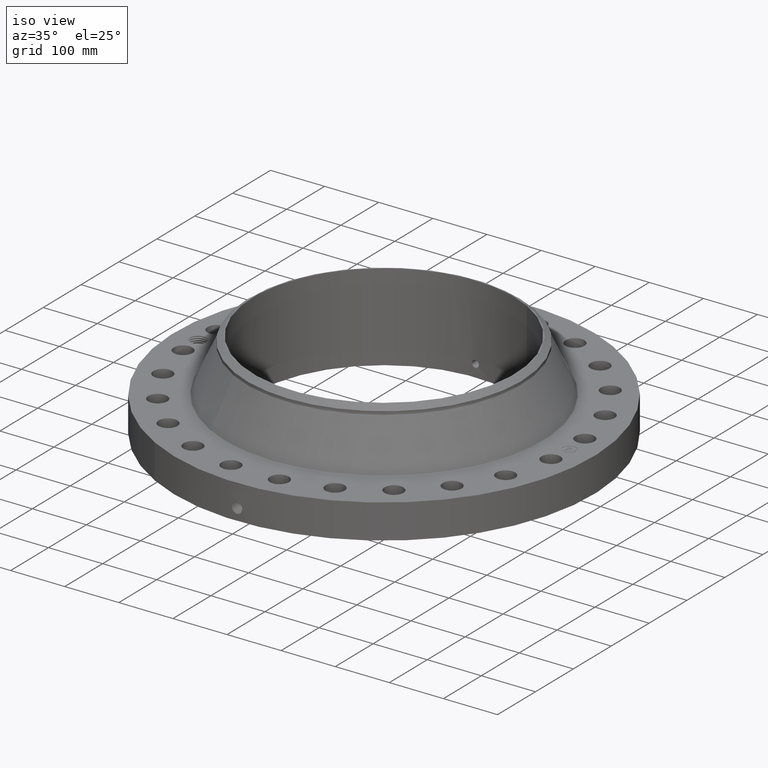
[diagram: clean part render]
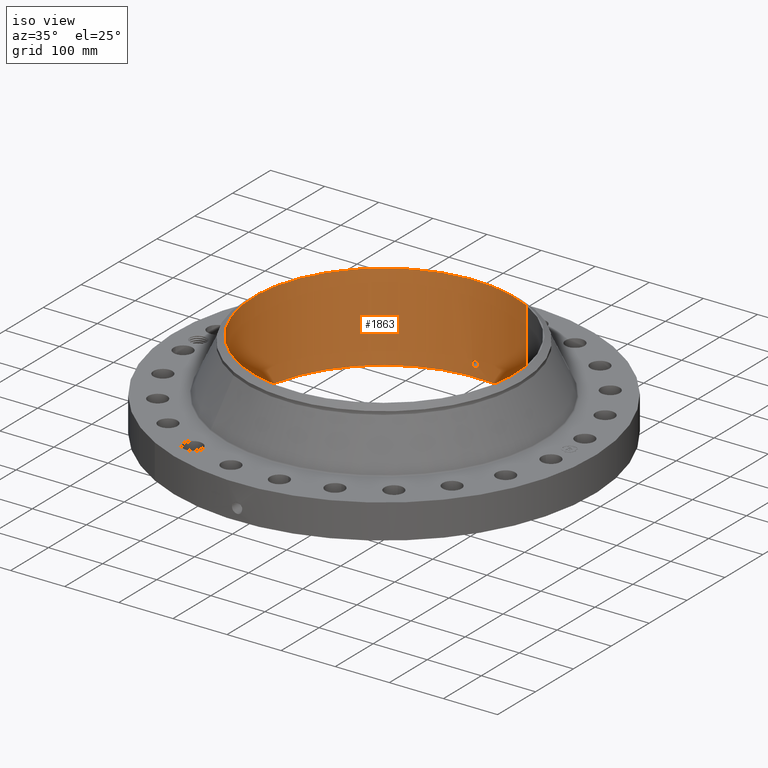
[diagram: tour spotlight — one face highlighted and labeled with its STEP entity id]
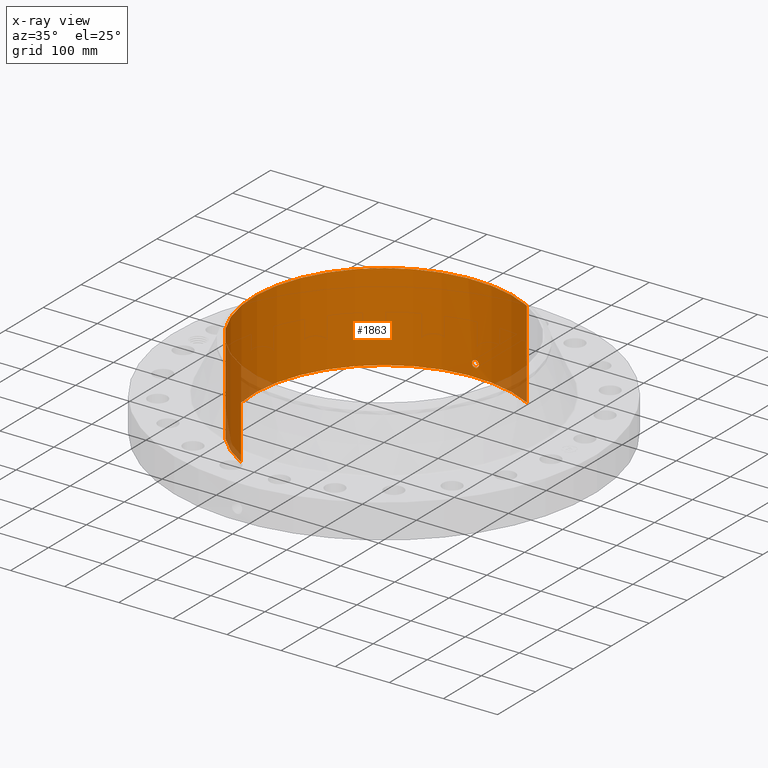
[diagram: x-ray of the same camera — body ghosted, this tour face saturated]
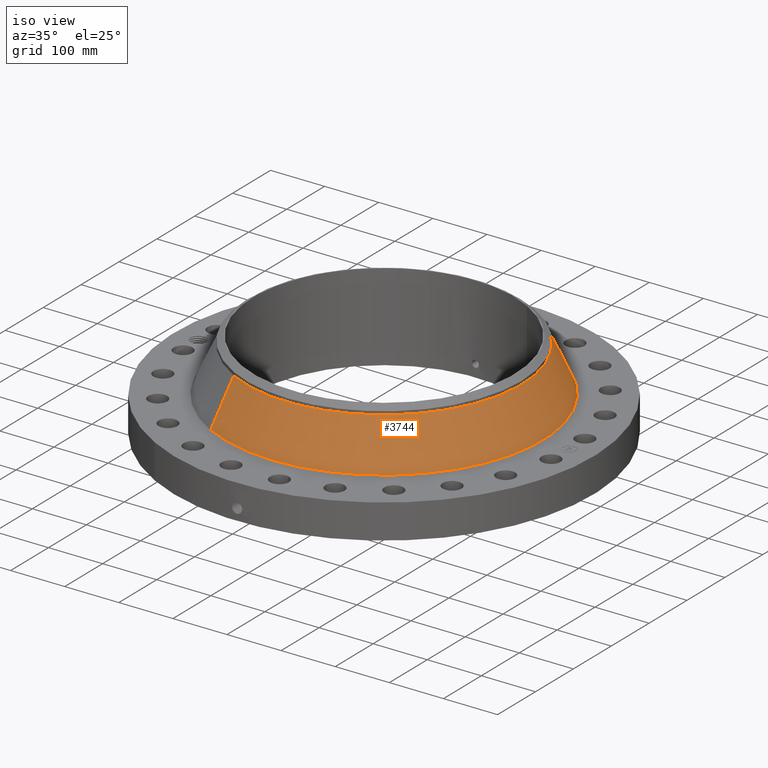
[diagram: tour spotlight — one face highlighted and labeled with its STEP entity id]
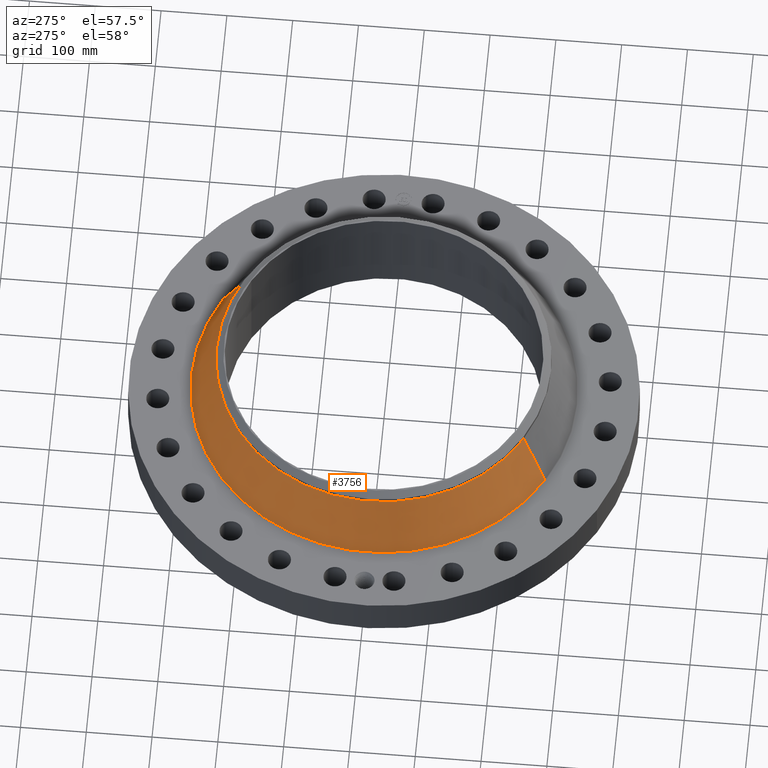
[diagram: tour spotlight — one face highlighted and labeled with its STEP entity id]
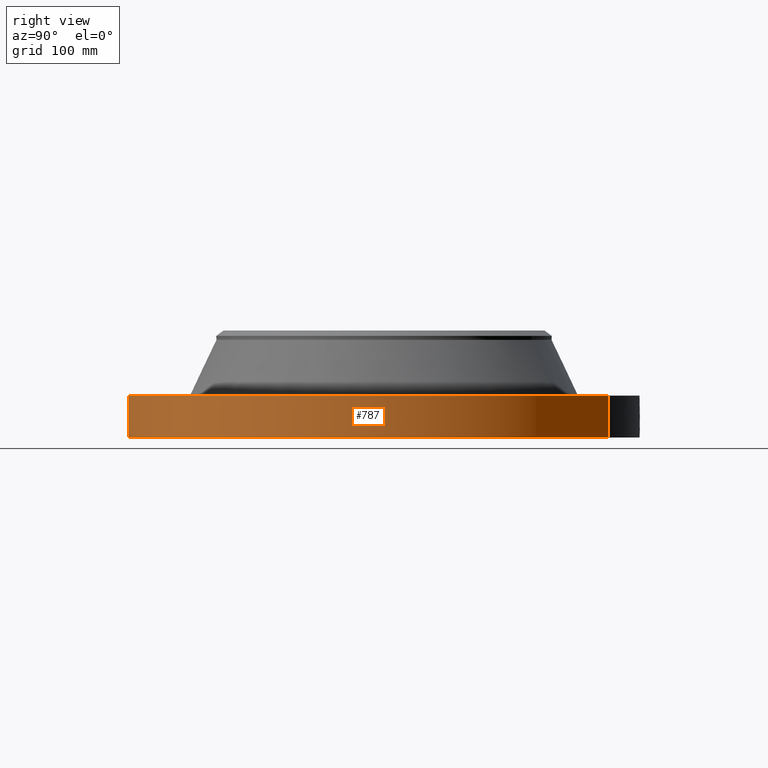
[diagram: tour spotlight — one face highlighted and labeled with its STEP entity id]
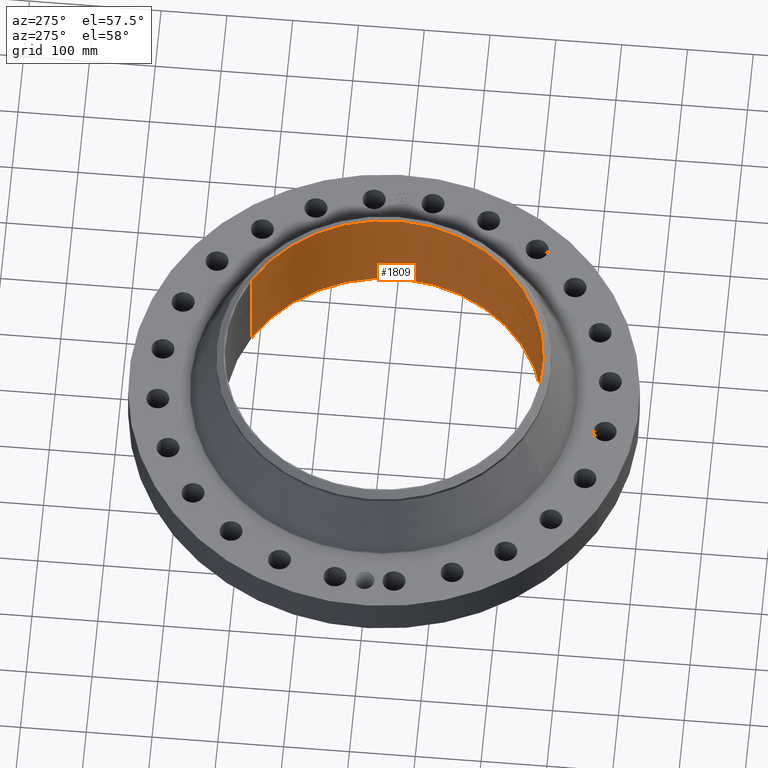
[diagram: tour spotlight — one face highlighted and labeled with its STEP entity id]
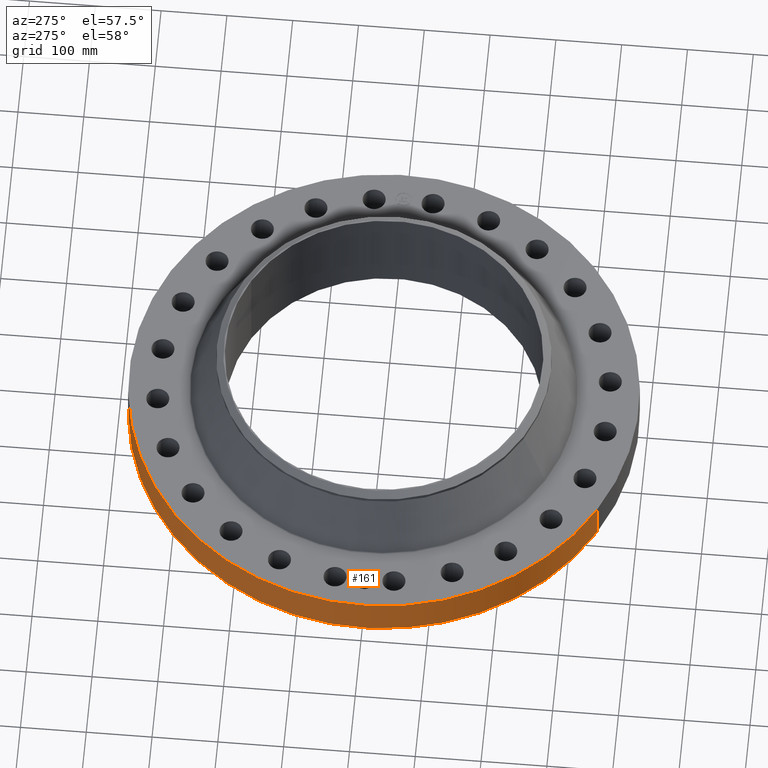
[diagram: tour spotlight — one face highlighted and labeled with its STEP entity id]
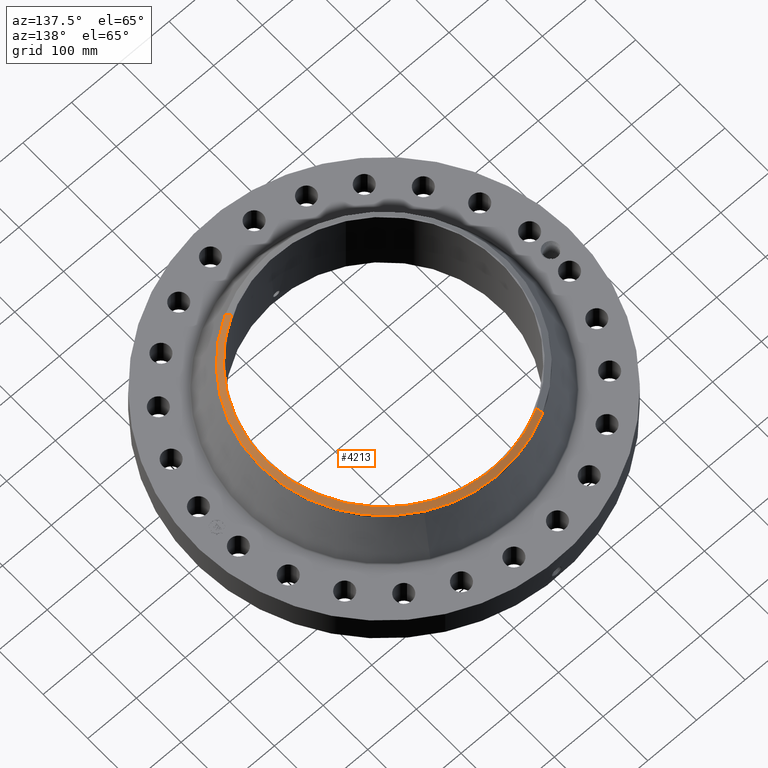
[diagram: tour spotlight — one face highlighted and labeled with its STEP entity id]
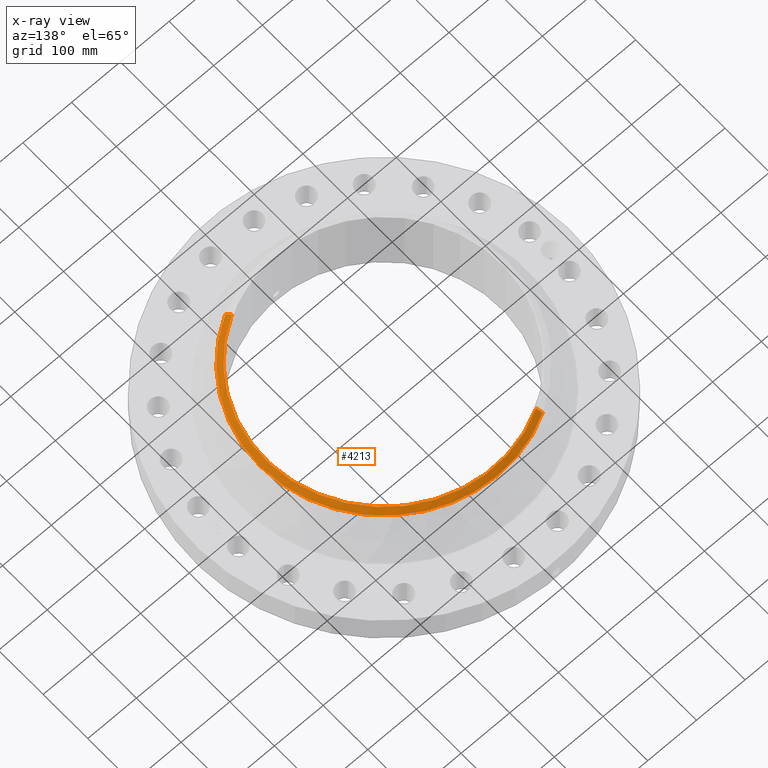
[diagram: x-ray of the same camera — body ghosted, this tour face saturated]
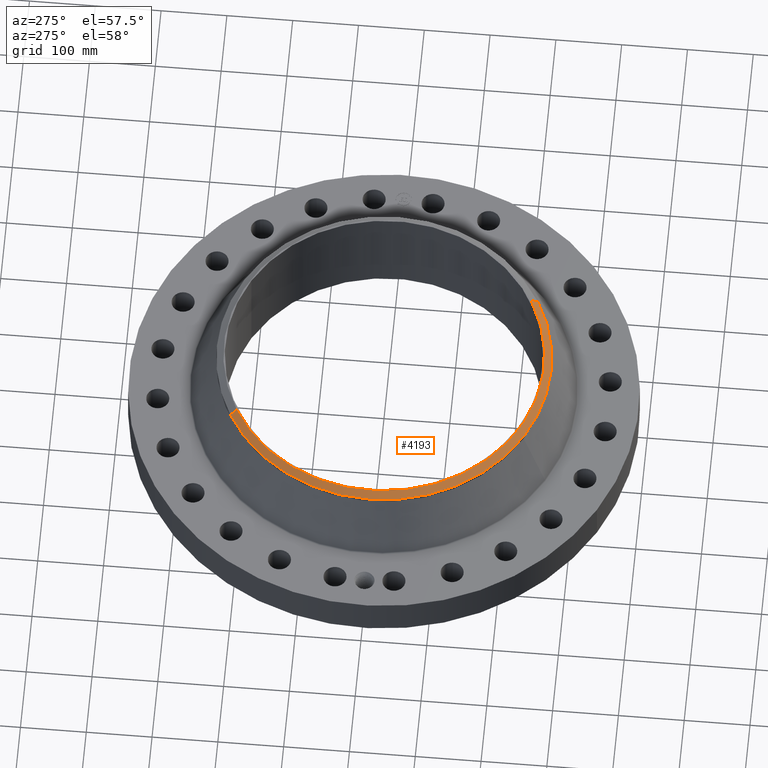
[diagram: tour spotlight — one face highlighted and labeled with its STEP entity id]
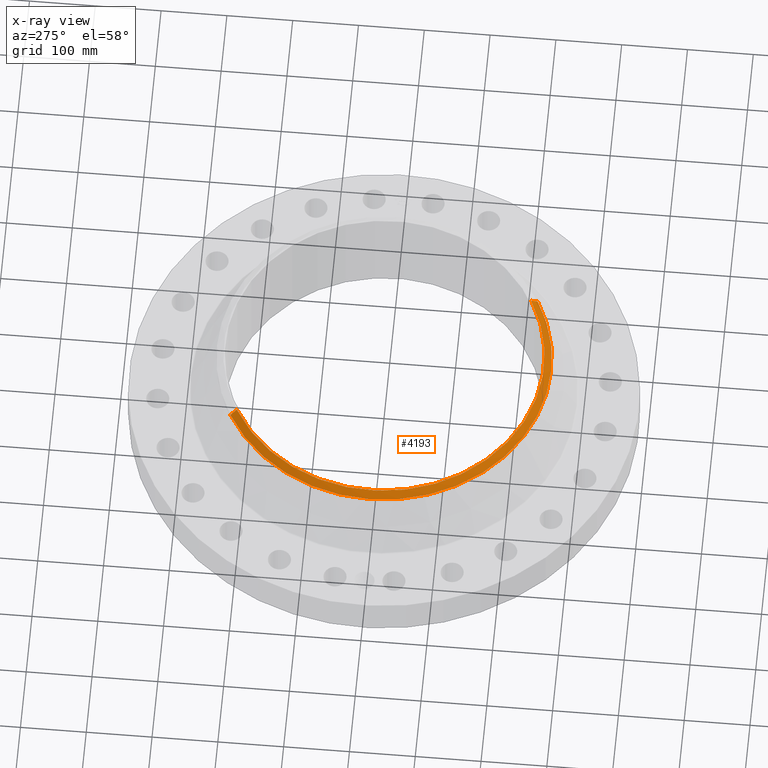
[diagram: x-ray of the same camera — body ghosted, this tour face saturated]
A machine part: a face-by-face anatomy tour. The part has 815 B-rep faces; the first image is the clean iso view, then the 8 largest visible faces are spotlighted one at a time (largest first), each with its STEP entity span.

Face 1 — iso view, entity #1863. An x-ray twin of the same camera follows (body ghosted, this face saturated) — the face is partly hidden behind the body. In plain terms, the highlighted cylindrical surface (partial cylindrical patch) has radius 241.3 mm, axis along (0, 0, -1).
Definition (entity closure, byte-faithful):
#267=AXIS2_PLACEMENT_3D('Circle Axis2P3D',#265,#266,$) ;
#1740=AXIS2_PLACEMENT_3D('Cylinder Axis2P3D',#1737,#1738,#1739) ;
#1812=AXIS2_PLACEMENT_3D('Circle Axis2P3D',#1810,#1811,$) ;
#260=CARTESIAN_POINT('Vertex',(4.55454261676,8.33703433799,0.0600000000002)) ;
#262=CARTESIAN_POINT('Vertex',(-4.55454261676,-8.33703433799,0.0600000000002)) ;
#265=CARTESIAN_POINT('Axis2P3D Location',(0.,0.,0.0600000000002)) ;
#1737=CARTESIAN_POINT('Axis2P3D Location',(0.,0.,3.25000000001)) ;
#1746=CARTESIAN_POINT('Vertex',(4.55454261676,8.33703433799,6.44000000003)) ;
#1748=CARTESIAN_POINT('Vertex',(-4.55454261676,-8.33703433799,6.44000000003)) ;
#1751=CARTESIAN_POINT('Line Origine',(4.55454261676,8.33703433799,3.25000000001)) ;
#1756=CARTESIAN_POINT('Line Origine',(-4.55454261676,-8.33703433799,3.25000000001)) ;
#1810=CARTESIAN_POINT('Axis2P3D Location',(0.,0.,6.44000000003)) ;
#1822=CARTESIAN_POINT('Control Point',(0.219395640473,9.4974662702,1.05985638466)) ;
#1823=CARTESIAN_POINT('Control Point',(0.194442935998,9.49804268863,1.10553200382)) ;
#1824=CARTESIAN_POINT('Control Point',(0.157604874715,9.49881167245,1.14471210689)) ;
#1825=CARTESIAN_POINT('Control Point',(0.111106986348,9.49955955235,1.17324351808)) ;
#1826=CARTESIAN_POINT('Control Point',(0.0336717783196,9.50015458293,1.19588281264)) ;
#1827=CARTESIAN_POINT('Control Point',(-0.044673037031,9.49994894621,1.18805610377)) ;
#1828=CARTESIAN_POINT('Control Point',(-0.0703033492364,9.49978931029,1.18204313534)) ;
#1829=CARTESIAN_POINT('Control Point',(-0.143960170541,9.49908388344,1.15420983013)) ;
#1830=CARTESIAN_POINT('Control Point',(-0.203248205384,9.49793246426,1.09949287893)) ;
#1831=CARTESIAN_POINT('Control Point',(-0.232212656354,9.49717731079,1.05325204753)) ;
#1832=CARTESIAN_POINT('Control Point',(-0.255841020188,9.49655659169,0.975105963638)) ;
#1833=CARTESIAN_POINT('Control Point',(-0.24828187603,9.49675500838,0.895743006064)) ;
#1834=CARTESIAN_POINT('Control Point',(-0.242048121009,9.49692100883,0.869181965435)) ;
#1835=CARTESIAN_POINT('Control Point',(-0.232314918729,9.4971678292,0.843792195572)) ;
#1836=CARTESIAN_POINT('Control Point',(-0.219395640473,9.4974662702,0.820143615352)) ;
#1837=CARTESIAN_POINT('Vertex',(0.219395640473,9.4974662702,1.05985638466)) ;
#1839=CARTESIAN_POINT('Vertex',(-0.219395640473,9.4974662702,0.820143615352)) ;
#1843=CARTESIAN_POINT('Control Point',(-0.219395640473,9.4974662702,0.820143615352)) ;
#1844=CARTESIAN_POINT('Control Point',(-0.194442935986,9.49804268863,0.774467996164)) ;
#1845=CARTESIAN_POINT('Control Point',(-0.157604874679,9.49881167245,0.735287893083)) ;
#1846=CARTESIAN_POINT('Control Point',(-0.1111069864,9.49955955235,0.706756481942)) ;
#1847=CARTESIAN_POINT('Control Point',(-0.0336717783567,9.50015458293,0.684117187373)) ;
#1848=CARTESIAN_POINT('Control Point',(0.0446730370104,9.49994894621,0.691943896232)) ;
#1849=CARTESIAN_POINT('Control Point',(0.0703033492518,9.49978931029,0.697956864676)) ;
#1850=CARTESIAN_POINT('Control Point',(0.143960170647,9.49908388344,0.72579016992)) ;
#1851=CARTESIAN_POINT('Control Point',(0.203248205545,9.49793246426,0.780507121222)) ;
#1852=CARTESIAN_POINT('Control Point',(0.23221265629,9.4971773108,0.826747952265)) ;
#1853=CARTESIAN_POINT('Control Point',(0.255841020174,9.49655659169,0.904894036181)) ;
#1854=CARTESIAN_POINT('Control Point',(0.248281876046,9.49675500837,0.984256993781)) ;
#1855=CARTESIAN_POINT('Control Point',(0.242048120951,9.49692100883,1.01081803472)) ;
#1856=CARTESIAN_POINT('Control Point',(0.23231491869,9.49716782921,1.03620780451)) ;
#1857=CARTESIAN_POINT('Control Point',(0.219395640473,9.4974662702,1.05985638466)) ;
#266=DIRECTION('Axis2P3D Direction',(0.,0.,-0.0393700787402)) ;
#1738=DIRECTION('Axis2P3D Direction',(0.,0.,-0.0393700787402)) ;
#1739=DIRECTION('Axis2P3D XDirection',(-0.0188750212049,-0.0345504945626,0.)) ;
#1752=DIRECTION('Vector Direction',(0.,0.,-0.0393700787402)) ;
#1757=DIRECTION('Vector Direction',(0.,0.,-0.0393700787402)) ;
#1811=DIRECTION('Axis2P3D Direction',(0.,0.,-0.0393700787402)) ;
#1753=VECTOR('Line Direction',#1752,0.0393700787402) ;
#1758=VECTOR('Line Direction',#1757,0.0393700787402) ;
#1816=ORIENTED_EDGE('',*,*,#1814,.F.) ;
#1817=ORIENTED_EDGE('',*,*,#1760,.T.) ;
#1818=ORIENTED_EDGE('',*,*,#269,.T.) ;
#1819=ORIENTED_EDGE('',*,*,#1755,.F.) ;
#1860=ORIENTED_EDGE('',*,*,#1841,.F.) ;
#1861=ORIENTED_EDGE('',*,*,#1858,.F.) ;
#1862=FACE_BOUND('',#1859,.T.) ;
#1863=ADVANCED_FACE('PartBody',(#1820,#1862),#1741,.F.) ;
#1821=B_SPLINE_CURVE_WITH_KNOTS('',5,(#1822,#1823,#1824,#1825,#1826,#1827,#1828,#1829,#1830,#1831,#1832,#1833,#1834,#1835,#1836),.UNSPECIFIED.,.F.,.U.,(6,3,3,3,6),(0.,9.3484973547,14.0229160409,23.3729561852,28.2131465026),.UNSPECIFIED.) ;
#1842=B_SPLINE_CURVE_WITH_KNOTS('',5,(#1843,#1844,#1845,#1846,#1847,#1848,#1849,#1850,#1851,#1852,#1853,#1854,#1855,#1856,#1857),.UNSPECIFIED.,.F.,.U.,(6,3,3,3,6),(0.,9.34849735928,14.0229160438,23.3729562074,28.2131465104),.UNSPECIFIED.) ;
#268=CIRCLE('generated circle',#267,9.50000000004) ;
#1813=CIRCLE('generated circle',#1812,9.50000000004) ;
#1741=CYLINDRICAL_SURFACE('generated cylinder',#1740,9.50000000004) ;
#269=EDGE_CURVE('',#263,#261,#268,.T.) ;
#1755=EDGE_CURVE('',#1747,#261,#1754,.T.) ;
#1760=EDGE_CURVE('',#1749,#263,#1759,.T.) ;
#1814=EDGE_CURVE('',#1749,#1747,#1813,.T.) ;
#1841=EDGE_CURVE('',#1838,#1840,#1821,.T.) ;
#1858=EDGE_CURVE('',#1840,#1838,#1842,.T.) ;
#1815=EDGE_LOOP('',(#1816,#1817,#1818,#1819)) ;
#1859=EDGE_LOOP('',(#1860,#1861)) ;
#1820=FACE_OUTER_BOUND('',#1815,.T.) ;
#1754=LINE('Line',#1751,#1753) ;
#1759=LINE('Line',#1756,#1758) ;
#261=VERTEX_POINT('',#260) ;
#263=VERTEX_POINT('',#262) ;
#1747=VERTEX_POINT('',#1746) ;
#1749=VERTEX_POINT('',#1748) ;
#1838=VERTEX_POINT('',#1837) ;
#1840=VERTEX_POINT('',#1839) ;

Face 2 — iso view, entity #3744. In plain terms, the highlighted conical surface has half-angle 25.164 deg.
Definition (entity closure, byte-faithful):
#2937=AXIS2_PLACEMENT_3D('Circle Axis2P3D',#2935,#2936,$) ;
#3717=AXIS2_PLACEMENT_3D('Cone Axis2P3D',#3714,#3715,#3716) ;
#3728=AXIS2_PLACEMENT_3D('Circle Axis2P3D',#3726,#3727,$) ;
#2932=CARTESIAN_POINT('Vertex',(5.52662377677,10.1164169659,2.62897412282)) ;
#2935=CARTESIAN_POINT('Axis2P3D Location',(0.,0.,2.62897412282)) ;
#2939=CARTESIAN_POINT('Vertex',(-5.52662377677,-10.1164169659,2.62897412282)) ;
#3714=CARTESIAN_POINT('Axis2P3D Location',(0.,0.,5.88053548147)) ;
#3719=CARTESIAN_POINT('Line Origine',(5.16043958142,9.44612129242,4.25475480215)) ;
#3723=CARTESIAN_POINT('Vertex',(4.79425538606,8.77582561894,5.88053548147)) ;
#3726=CARTESIAN_POINT('Axis2P3D Location',(0.,0.,5.88053548147)) ;
#3730=CARTESIAN_POINT('Vertex',(-4.79425538606,-8.77582561894,5.88053548147)) ;
#3733=CARTESIAN_POINT('Line Origine',(-5.16043958142,-9.44612129242,4.25475480215)) ;
#2936=DIRECTION('Axis2P3D Direction',(0.,0.,-0.0393700787402)) ;
#3715=DIRECTION('Axis2P3D Direction',(0.,0.,-0.0393700787402)) ;
#3716=DIRECTION('Axis2P3D XDirection',(-0.0188750212049,-0.0345504945626,0.)) ;
#3720=DIRECTION('Vector Direction',(0.00802595428238,0.0146914107689,-0.0356335460975)) ;
#3727=DIRECTION('Axis2P3D Direction',(0.,0.,-0.0393700787402)) ;
#3734=DIRECTION('Vector Direction',(-0.00802595428238,-0.0146914107689,-0.0356335460975)) ;
#3721=VECTOR('Line Direction',#3720,0.0393700787402) ;
#3735=VECTOR('Line Direction',#3734,0.0393700787402) ;
#3739=ORIENTED_EDGE('',*,*,#2941,.F.) ;
#3740=ORIENTED_EDGE('',*,*,#3725,.T.) ;
#3741=ORIENTED_EDGE('',*,*,#3732,.T.) ;
#3742=ORIENTED_EDGE('',*,*,#3737,.F.) ;
#3744=ADVANCED_FACE('PartBody',(#3743),#3718,.T.) ;
#2938=CIRCLE('generated circle',#2937,11.5275956989) ;
#3729=CIRCLE('generated circle',#3728,10.) ;
#3718=CONICAL_SURFACE('Cone',#3717,10.,0.439200127838) ;
#2941=EDGE_CURVE('',#2933,#2940,#2938,.T.) ;
#3725=EDGE_CURVE('',#2933,#3724,#3722,.F.) ;
#3732=EDGE_CURVE('',#3724,#3731,#3729,.T.) ;
#3737=EDGE_CURVE('',#2940,#3731,#3736,.F.) ;
#3738=EDGE_LOOP('',(#3739,#3740,#3741,#3742)) ;
#3743=FACE_OUTER_BOUND('',#3738,.T.) ;
#3722=LINE('Line',#3719,#3721) ;
#3736=LINE('Line',#3733,#3735) ;
#2933=VERTEX_POINT('',#2932) ;
#2940=VERTEX_POINT('',#2939) ;
#3724=VERTEX_POINT('',#3723) ;
#3731=VERTEX_POINT('',#3730) ;

Face 3 — auxiliary view, entity #3756. In plain terms, the highlighted conical surface has half-angle 25.164 deg.
Definition (entity closure, byte-faithful):
#2956=AXIS2_PLACEMENT_3D('Circle Axis2P3D',#2954,#2955,$) ;
#3717=AXIS2_PLACEMENT_3D('Cone Axis2P3D',#3714,#3715,#3716) ;
#3747=AXIS2_PLACEMENT_3D('Circle Axis2P3D',#3745,#3746,$) ;
#2932=CARTESIAN_POINT('Vertex',(5.52662377677,10.1164169659,2.62897412282)) ;
#2939=CARTESIAN_POINT('Vertex',(-5.52662377677,-10.1164169659,2.62897412282)) ;
#2954=CARTESIAN_POINT('Axis2P3D Location',(0.,0.,2.62897412282)) ;
#3714=CARTESIAN_POINT('Axis2P3D Location',(0.,0.,5.88053548147)) ;
#3719=CARTESIAN_POINT('Line Origine',(5.16043958142,9.44612129242,4.25475480215)) ;
#3723=CARTESIAN_POINT('Vertex',(4.79425538606,8.77582561894,5.88053548147)) ;
#3730=CARTESIAN_POINT('Vertex',(-4.79425538606,-8.77582561894,5.88053548147)) ;
#3733=CARTESIAN_POINT('Line Origine',(-5.16043958142,-9.44612129242,4.25475480215)) ;
#3745=CARTESIAN_POINT('Axis2P3D Location',(0.,0.,5.88053548147)) ;
#2955=DIRECTION('Axis2P3D Direction',(0.,0.,-0.0393700787402)) ;
#3715=DIRECTION('Axis2P3D Direction',(0.,0.,-0.0393700787402)) ;
#3716=DIRECTION('Axis2P3D XDirection',(-0.0188750212049,-0.0345504945626,0.)) ;
#3720=DIRECTION('Vector Direction',(0.00802595428238,0.0146914107689,-0.0356335460975)) ;
#3734=DIRECTION('Vector Direction',(-0.00802595428238,-0.0146914107689,-0.0356335460975)) ;
#3746=DIRECTION('Axis2P3D Direction',(0.,0.,-0.0393700787402)) ;
#3721=VECTOR('Line Direction',#3720,0.0393700787402) ;
#3735=VECTOR('Line Direction',#3734,0.0393700787402) ;
#3751=ORIENTED_EDGE('',*,*,#2958,.F.) ;
#3752=ORIENTED_EDGE('',*,*,#3737,.T.) ;
#3753=ORIENTED_EDGE('',*,*,#3749,.T.) ;
#3754=ORIENTED_EDGE('',*,*,#3725,.F.) ;
#3756=ADVANCED_FACE('PartBody',(#3755),#3718,.T.) ;
#2957=CIRCLE('generated circle',#2956,11.5275956989) ;
#3748=CIRCLE('generated circle',#3747,10.) ;
#3718=CONICAL_SURFACE('Cone',#3717,10.,0.439200127838) ;
#2958=EDGE_CURVE('',#2940,#2933,#2957,.T.) ;
#3725=EDGE_CURVE('',#2933,#3724,#3722,.F.) ;
#3737=EDGE_CURVE('',#2940,#3731,#3736,.F.) ;
#3749=EDGE_CURVE('',#3731,#3724,#3748,.T.) ;
#3750=EDGE_LOOP('',(#3751,#3752,#3753,#3754)) ;
#3755=FACE_OUTER_BOUND('',#3750,.T.) ;
#3722=LINE('Line',#3719,#3721) ;
#3736=LINE('Line',#3733,#3735) ;
#2933=VERTEX_POINT('',#2932) ;
#2940=VERTEX_POINT('',#2939) ;
#3724=VERTEX_POINT('',#3723) ;
#3731=VERTEX_POINT('',#3730) ;

Face 4 — right view, entity #787. In plain terms, the highlighted cylindrical surface (partial cylindrical patch) has radius 387.35 mm, axis along (0, 0, -1).
Definition (entity closure, byte-faithful):
#38=AXIS2_PLACEMENT_3D('Cylinder Axis2P3D',#35,#36,#37) ;
#169=AXIS2_PLACEMENT_3D('Circle Axis2P3D',#167,#168,$) ;
#691=AXIS2_PLACEMENT_3D('Circle Axis2P3D',#689,#690,$) ;
#35=CARTESIAN_POINT('Axis2P3D Location',(0.,0.,3.25000000001)) ;
#44=CARTESIAN_POINT('Vertex',(-7.31123946374,-13.3831340689,0.0600000000002)) ;
#46=CARTESIAN_POINT('Vertex',(7.31123946374,13.3831340689,0.0600000000002)) ;
#49=CARTESIAN_POINT('Line Origine',(-7.31123946374,-13.3831340689,1.31000000001)) ;
#53=CARTESIAN_POINT('Vertex',(-7.31123946374,-13.3831340689,2.56000000001)) ;
#60=CARTESIAN_POINT('Vertex',(7.31123946374,13.3831340689,2.56000000001)) ;
#63=CARTESIAN_POINT('Line Origine',(7.31123946374,13.3831340689,1.31000000001)) ;
#167=CARTESIAN_POINT('Axis2P3D Location',(0.,0.,0.0600000000002)) ;
#689=CARTESIAN_POINT('Axis2P3D Location',(0.,0.,2.56000000001)) ;
#701=CARTESIAN_POINT('Control Point',(0.000716049760787,-15.2499999833,1.29411846129)) ;
#702=CARTESIAN_POINT('Control Point',(0.0189701072521,-15.2499991261,1.29408159437)) ;
#703=CARTESIAN_POINT('Control Point',(0.037220975129,-15.2499652355,1.29262936671)) ;
#704=CARTESIAN_POINT('Control Point',(0.0552509399612,-15.2498999123,1.28977927812)) ;
#705=CARTESIAN_POINT('Vertex',(0.000715697200082,-15.2499999833,1.29411851055)) ;
#707=CARTESIAN_POINT('Vertex',(0.055242138106,-15.2499001965,1.28978068759)) ;
#711=CARTESIAN_POINT('Control Point',(0.0552420427631,-15.2498999445,1.28978014022)) ;
#712=CARTESIAN_POINT('Control Point',(0.0956981569451,-15.2497533942,1.28536268072)) ;
#713=CARTESIAN_POINT('Control Point',(0.135516524693,-15.2494419834,1.27358724127)) ;
#714=CARTESIAN_POINT('Control Point',(0.172195687342,-15.2490277935,1.25523274047)) ;
#715=CARTESIAN_POINT('Vertex',(0.172195687342,-15.2490277935,1.25523274047)) ;
#719=CARTESIAN_POINT('Control Point',(0.0310152642592,-15.2499684608,0.53118928844)) ;
#720=CARTESIAN_POINT('Control Point',(0.096182338076,-15.2498359245,0.53943673914)) ;
#721=CARTESIAN_POINT('Control Point',(0.159294043613,-15.2493594722,0.561293751341)) ;
#722=CARTESIAN_POINT('Control Point',(0.216401136983,-15.2485887094,0.596098828578)) ;
#723=CARTESIAN_POINT('Control Point',(0.288819771711,-15.2473275345,0.664189974966)) ;
#724=CARTESIAN_POINT('Control Point',(0.336428392914,-15.2462994751,0.748671469576)) ;
#725=CARTESIAN_POINT('Control Point',(0.349472606077,-15.2460004619,0.778732970464)) ;
#726=CARTESIAN_POINT('Control Point',(0.371687708475,-15.2454753168,0.848970818087)) ;
#727=CARTESIAN_POINT('Control Point',(0.377175372905,-15.2453335918,0.922141203902)) ;
#728=CARTESIAN_POINT('Control Point',(0.374910288485,-15.2453911791,0.962947952436)) ;
#729=CARTESIAN_POINT('Control Point',(0.356496036631,-15.245851249,1.06072433242)) ;
#730=CARTESIAN_POINT('Control Point',(0.30813679188,-15.2469313731,1.1479432579)) ;
#731=CARTESIAN_POINT('Control Point',(0.269818079789,-15.2477093271,1.19323963338)) ;
#732=CARTESIAN_POINT('Control Point',(0.223535778782,-15.2484480489,1.22954180689)) ;
#733=CARTESIAN_POINT('Control Point',(0.172195687342,-15.2490277935,1.25523274047)) ;
#734=CARTESIAN_POINT('Vertex',(0.0310152642592,-15.2499684608,0.53118928844)) ;
#738=CARTESIAN_POINT('Control Point',(0.0310152642592,-15.2499684608,0.53118928844)) ;
#739=CARTESIAN_POINT('Control Point',(0.0206719752859,-15.2499894969,0.53087456983)) ;
#740=CARTESIAN_POINT('Control Point',(0.0103211166376,-15.2500000019,0.530936539703)) ;
#741=CARTESIAN_POINT('Control Point',(-2.72878354802E-006,-15.2500000001,0.531374667806)) ;
#742=CARTESIAN_POINT('Vertex',(-2.72878354471E-006,-15.2500000001,0.531374667806)) ;
#746=CARTESIAN_POINT('Control Point',(-0.192625061438,-15.2487834134,0.58741326924)) ;
#747=CARTESIAN_POINT('Control Point',(-0.149005457549,-15.2493344231,0.562040395754)) ;
#748=CARTESIAN_POINT('Control Point',(-0.101116386706,-15.2497737091,0.543779824756)) ;
#749=CARTESIAN_POINT('Control Point',(-0.0508056148568,-15.249999991,0.533530663288)) ;
#750=CARTESIAN_POINT('Control Point',(-2.72878354803E-006,-15.2500000001,0.531374667806)) ;
#751=CARTESIAN_POINT('Vertex',(-0.192625061438,-15.2487834134,0.58741326924)) ;
#755=CARTESIAN_POINT('Control Point',(-0.192625061438,-15.2487834134,0.58741326924)) ;
#756=CARTESIAN_POINT('Control Point',(-0.249453783262,-15.2480655439,0.620469689031)) ;
#757=CARTESIAN_POINT('Control Point',(-0.299509163613,-15.2471684596,0.664842822469)) ;
#758=CARTESIAN_POINT('Control Point',(-0.339645810423,-15.2462572537,0.718973028875)) ;
#759=CARTESIAN_POINT('Control Point',(-0.383846820917,-15.2451782415,0.81717132323)) ;
#760=CARTESIAN_POINT('Control Point',(-0.392394948551,-15.2449495023,0.92245643257)) ;
#761=CARTESIAN_POINT('Control Point',(-0.390268294798,-15.2450057477,0.96262107824)) ;
#762=CARTESIAN_POINT('Control Point',(-0.376095244228,-15.2453740937,1.03752589677)) ;
#763=CARTESIAN_POINT('Control Point',(-0.343961436321,-15.2461332323,1.10595638764)) ;
#764=CARTESIAN_POINT('Control Point',(-0.324884519533,-15.2465612243,1.13637813142)) ;
#765=CARTESIAN_POINT('Control Point',(-0.263167036718,-15.2478271655,1.21273609869)) ;
#766=CARTESIAN_POINT('Control Point',(-0.180082080091,-15.2490857223,1.26567044336)) ;
#767=CARTESIAN_POINT('Control Point',(-0.121355009485,-15.2497029237,1.28768574767)) ;
#768=CARTESIAN_POINT('Control Point',(-0.0601974085769,-15.2500001022,1.29710564982)) ;
#769=CARTESIAN_POINT('Control Point',(2.58579355455E-005,-15.25,1.2941529843)) ;
#770=CARTESIAN_POINT('Vertex',(2.58579355472E-005,-15.25,1.2941529843)) ;
#774=CARTESIAN_POINT('Control Point',(0.000715697190474,-15.2499999833,1.29411851054)) ;
#775=CARTESIAN_POINT('Control Point',(0.00037080210737,-15.2499999995,1.29413607216)) ;
#776=CARTESIAN_POINT('Control Point',(2.58579405796E-005,-15.25,1.2941529843)) ;
#36=DIRECTION('Axis2P3D Direction',(0.,0.,-0.0393700787402)) ;
#37=DIRECTION('Axis2P3D XDirection',(0.0188750212049,0.0345504945626,0.)) ;
#50=DIRECTION('Vector Direction',(0.,0.,-0.0393700787402)) ;
#64=DIRECTION('Vector Direction',(0.,0.,-0.0393700787402)) ;
#168=DIRECTION('Axis2P3D Direction',(0.,0.,-0.0393700787402)) ;
#690=DIRECTION('Axis2P3D Direction',(0.,0.,-0.0393700787402)) ;
#51=VECTOR('Line Direction',#50,0.0393700787402) ;
#65=VECTOR('Line Direction',#64,0.0393700787402) ;
#695=ORIENTED_EDGE('',*,*,#171,.F.) ;
#696=ORIENTED_EDGE('',*,*,#67,.T.) ;
#697=ORIENTED_EDGE('',*,*,#693,.T.) ;
#698=ORIENTED_EDGE('',*,*,#55,.F.) ;
#779=ORIENTED_EDGE('',*,*,#709,.T.) ;
#780=ORIENTED_EDGE('',*,*,#717,.T.) ;
#781=ORIENTED_EDGE('',*,*,#736,.F.) ;
#782=ORIENTED_EDGE('',*,*,#744,.T.) ;
#783=ORIENTED_EDGE('',*,*,#753,.F.) ;
#784=ORIENTED_EDGE('',*,*,#772,.T.) ;
#785=ORIENTED_EDGE('',*,*,#777,.F.) ;
#786=FACE_BOUND('',#778,.T.) ;
#787=ADVANCED_FACE('PartBody',(#699,#786),#39,.T.) ;
#700=B_SPLINE_CURVE_WITH_KNOTS('',3,(#701,#702,#703,#704),.UNSPECIFIED.,.F.,.U.,(4,4),(34.6166020514,36.6417164652),.UNSPECIFIED.) ;
#710=B_SPLINE_CURVE_WITH_KNOTS('',3,(#711,#712,#713,#714),.UNSPECIFIED.,.F.,.U.,(4,4),(0.,4.57283024555),.UNSPECIFIED.) ;
#718=B_SPLINE_CURVE_WITH_KNOTS('',5,(#719,#720,#721,#722,#723,#724,#725,#726,#727,#728,#729,#730,#731,#732,#733),.UNSPECIFIED.,.F.,.U.,(6,3,3,3,6),(0.,11.415630131,17.2563856346,24.6134499068,35.2811567163),.UNSPECIFIED.) ;
#737=B_SPLINE_CURVE_WITH_KNOTS('',3,(#738,#739,#740,#741),.UNSPECIFIED.,.F.,.U.,(4,4),(0.,1.07896259327),.UNSPECIFIED.) ;
#745=B_SPLINE_CURVE_WITH_KNOTS('',4,(#746,#747,#748,#749,#750),.UNSPECIFIED.,.F.,.U.,(5,5),(0.,7.07932769997),.UNSPECIFIED.) ;
#754=B_SPLINE_CURVE_WITH_KNOTS('',5,(#755,#756,#757,#758,#759,#760,#761,#762,#763,#764,#765,#766,#767,#768,#769),.UNSPECIFIED.,.F.,.U.,(6,3,3,3,6),(0.,11.5289086294,18.6079826554,25.0299917333,36.2869702256),.UNSPECIFIED.) ;
#773=B_SPLINE_CURVE_WITH_KNOTS('',2,(#774,#775,#776),.UNSPECIFIED.,.F.,.U.,(3,3),(1.021811413,1.04760230385),.UNSPECIFIED.) ;
#170=CIRCLE('generated circle',#169,15.2500000001) ;
#692=CIRCLE('generated circle',#691,15.2500000001) ;
#39=CYLINDRICAL_SURFACE('generated cylinder',#38,15.2500000001) ;
#55=EDGE_CURVE('',#45,#54,#52,.F.) ;
#67=EDGE_CURVE('',#47,#61,#66,.F.) ;
#171=EDGE_CURVE('',#47,#45,#170,.T.) ;
#693=EDGE_CURVE('',#61,#54,#692,.T.) ;
#709=EDGE_CURVE('',#706,#708,#700,.T.) ;
#717=EDGE_CURVE('',#708,#716,#710,.T.) ;
#736=EDGE_CURVE('',#735,#716,#718,.T.) ;
#744=EDGE_CURVE('',#735,#743,#737,.T.) ;
#753=EDGE_CURVE('',#752,#743,#745,.T.) ;
#772=EDGE_CURVE('',#752,#771,#754,.T.) ;
#777=EDGE_CURVE('',#706,#771,#773,.T.) ;
#694=EDGE_LOOP('',(#695,#696,#697,#698)) ;
#778=EDGE_LOOP('',(#779,#780,#781,#782,#783,#784,#785)) ;
#699=FACE_OUTER_BOUND('',#694,.T.) ;
#52=LINE('Line',#49,#51) ;
#66=LINE('Line',#63,#65) ;
#45=VERTEX_POINT('',#44) ;
#47=VERTEX_POINT('',#46) ;
#54=VERTEX_POINT('',#53) ;
#61=VERTEX_POINT('',#60) ;
#706=VERTEX_POINT('',#705) ;
#708=VERTEX_POINT('',#707) ;
#716=VERTEX_POINT('',#715) ;
#735=VERTEX_POINT('',#734) ;
#743=VERTEX_POINT('',#742) ;
#752=VERTEX_POINT('',#751) ;
#771=VERTEX_POINT('',#770) ;

Face 5 — auxiliary view, entity #1809. In plain terms, the highlighted cylindrical surface (partial cylindrical patch) has radius 241.3 mm, axis along (0, 0, -1).
Definition (entity closure, byte-faithful):
#258=AXIS2_PLACEMENT_3D('Circle Axis2P3D',#256,#257,$) ;
#1740=AXIS2_PLACEMENT_3D('Cylinder Axis2P3D',#1737,#1738,#1739) ;
#1744=AXIS2_PLACEMENT_3D('Circle Axis2P3D',#1742,#1743,$) ;
#256=CARTESIAN_POINT('Axis2P3D Location',(0.,0.,0.0600000000002)) ;
#260=CARTESIAN_POINT('Vertex',(4.55454261676,8.33703433799,0.0600000000002)) ;
#262=CARTESIAN_POINT('Vertex',(-4.55454261676,-8.33703433799,0.0600000000002)) ;
#1737=CARTESIAN_POINT('Axis2P3D Location',(0.,0.,3.25000000001)) ;
#1742=CARTESIAN_POINT('Axis2P3D Location',(0.,0.,6.44000000003)) ;
#1746=CARTESIAN_POINT('Vertex',(4.55454261676,8.33703433799,6.44000000003)) ;
#1748=CARTESIAN_POINT('Vertex',(-4.55454261676,-8.33703433799,6.44000000003)) ;
#1751=CARTESIAN_POINT('Line Origine',(4.55454261676,8.33703433799,3.25000000001)) ;
#1756=CARTESIAN_POINT('Line Origine',(-4.55454261676,-8.33703433799,3.25000000001)) ;
#1768=CARTESIAN_POINT('Control Point',(0.219395640473,-9.4974662702,0.820143615352)) ;
#1769=CARTESIAN_POINT('Control Point',(0.194442935972,-9.49804268863,0.774467996138)) ;
#1770=CARTESIAN_POINT('Control Point',(0.157604874637,-9.49881167245,0.735287893038)) ;
#1771=CARTESIAN_POINT('Control Point',(0.111106986342,-9.49955955236,0.706756481904)) ;
#1772=CARTESIAN_POINT('Control Point',(0.0336717782518,-9.50015458293,0.684117187351)) ;
#1773=CARTESIAN_POINT('Control Point',(-0.0446730371469,-9.49994894621,0.691943896256)) ;
#1774=CARTESIAN_POINT('Control Point',(-0.0703033493648,-9.49978931029,0.697956864708)) ;
#1775=CARTESIAN_POINT('Control Point',(-0.143960170695,-9.49908388343,0.725790169968)) ;
#1776=CARTESIAN_POINT('Control Point',(-0.203248205535,-9.49793246426,0.780507121243)) ;
#1777=CARTESIAN_POINT('Control Point',(-0.232212656383,-9.49717731079,0.826747952501)) ;
#1778=CARTESIAN_POINT('Control Point',(-0.255841020184,-9.49655659169,0.904894036365)) ;
#1779=CARTESIAN_POINT('Control Point',(-0.248281876025,-9.49675500838,0.984256993896)) ;
#1780=CARTESIAN_POINT('Control Point',(-0.242048120947,-9.49692100883,1.01081803473)) ;
#1781=CARTESIAN_POINT('Control Point',(-0.232314918688,-9.49716782921,1.03620780451)) ;
#1782=CARTESIAN_POINT('Control Point',(-0.219395640473,-9.4974662702,1.05985638466)) ;
#1783=CARTESIAN_POINT('Vertex',(0.219395640473,-9.4974662702,0.820143615352)) ;
#1785=CARTESIAN_POINT('Vertex',(-0.219395640473,-9.4974662702,1.05985638466)) ;
#1789=CARTESIAN_POINT('Control Point',(-0.219395640473,-9.4974662702,1.05985638466)) ;
#1790=CARTESIAN_POINT('Control Point',(-0.194442935971,-9.49804268863,1.10553200387)) ;
#1791=CARTESIAN_POINT('Control Point',(-0.157604874635,-9.49881167245,1.14471210697)) ;
#1792=CARTESIAN_POINT('Control Point',(-0.111106986345,-9.49955955236,1.1732435181)) ;
#1793=CARTESIAN_POINT('Control Point',(-0.0336717782541,-9.50015458293,1.19588281266)) ;
#1794=CARTESIAN_POINT('Control Point',(0.0446730371455,-9.49994894621,1.18805610375)) ;
#1795=CARTESIAN_POINT('Control Point',(0.0703033493642,-9.49978931029,1.1820431353)) ;
#1796=CARTESIAN_POINT('Control Point',(0.14396017072,-9.49908388343,1.15420983003)) ;
#1797=CARTESIAN_POINT('Control Point',(0.203248205576,-9.49793246426,1.09949287873)) ;
#1798=CARTESIAN_POINT('Control Point',(0.232212656367,-9.49717731079,1.05325204756)) ;
#1799=CARTESIAN_POINT('Control Point',(0.255841020186,-9.49655659169,0.975105963671)) ;
#1800=CARTESIAN_POINT('Control Point',(0.248281876025,-9.49675500838,0.895743006112)) ;
#1801=CARTESIAN_POINT('Control Point',(0.242048120947,-9.49692100883,0.869181965274)) ;
#1802=CARTESIAN_POINT('Control Point',(0.232314918688,-9.49716782921,0.843792195497)) ;
#1803=CARTESIAN_POINT('Control Point',(0.219395640473,-9.4974662702,0.820143615352)) ;
#257=DIRECTION('Axis2P3D Direction',(0.,0.,-0.0393700787402)) ;
#1738=DIRECTION('Axis2P3D Direction',(0.,0.,-0.0393700787402)) ;
#1739=DIRECTION('Axis2P3D XDirection',(-0.0188750212049,-0.0345504945626,0.)) ;
#1743=DIRECTION('Axis2P3D Direction',(0.,0.,-0.0393700787402)) ;
#1752=DIRECTION('Vector Direction',(0.,0.,-0.0393700787402)) ;
#1757=DIRECTION('Vector Direction',(0.,0.,-0.0393700787402)) ;
#1753=VECTOR('Line Direction',#1752,0.0393700787402) ;
#1758=VECTOR('Line Direction',#1757,0.0393700787402) ;
#1762=ORIENTED_EDGE('',*,*,#1750,.F.) ;
#1763=ORIENTED_EDGE('',*,*,#1755,.T.) ;
#1764=ORIENTED_EDGE('',*,*,#264,.T.) ;
#1765=ORIENTED_EDGE('',*,*,#1760,.F.) ;
#1806=ORIENTED_EDGE('',*,*,#1787,.F.) ;
#1807=ORIENTED_EDGE('',*,*,#1804,.F.) ;
#1808=FACE_BOUND('',#1805,.T.) ;
#1809=ADVANCED_FACE('PartBody',(#1766,#1808),#1741,.F.) ;
#1767=B_SPLINE_CURVE_WITH_KNOTS('',5,(#1768,#1769,#1770,#1771,#1772,#1773,#1774,#1775,#1776,#1777,#1778,#1779,#1780,#1781,#1782),.UNSPECIFIED.,.F.,.U.,(6,3,3,3,6),(0.,9.34849736469,14.0229160501,23.372956203,28.213146505),.UNSPECIFIED.) ;
#1788=B_SPLINE_CURVE_WITH_KNOTS('',5,(#1789,#1790,#1791,#1792,#1793,#1794,#1795,#1796,#1797,#1798,#1799,#1800,#1801,#1802,#1803),.UNSPECIFIED.,.F.,.U.,(6,3,3,3,6),(0.,9.3484973649,14.0229160503,23.3729562081,28.2131465101),.UNSPECIFIED.) ;
#259=CIRCLE('generated circle',#258,9.50000000004) ;
#1745=CIRCLE('generated circle',#1744,9.50000000004) ;
#1741=CYLINDRICAL_SURFACE('generated cylinder',#1740,9.50000000004) ;
#264=EDGE_CURVE('',#261,#263,#259,.T.) ;
#1750=EDGE_CURVE('',#1747,#1749,#1745,.T.) ;
#1755=EDGE_CURVE('',#1747,#261,#1754,.T.) ;
#1760=EDGE_CURVE('',#1749,#263,#1759,.T.) ;
#1787=EDGE_CURVE('',#1784,#1786,#1767,.T.) ;
#1804=EDGE_CURVE('',#1786,#1784,#1788,.T.) ;
#1761=EDGE_LOOP('',(#1762,#1763,#1764,#1765)) ;
#1805=EDGE_LOOP('',(#1806,#1807)) ;
#1766=FACE_OUTER_BOUND('',#1761,.T.) ;
#1754=LINE('Line',#1751,#1753) ;
#1759=LINE('Line',#1756,#1758) ;
#261=VERTEX_POINT('',#260) ;
#263=VERTEX_POINT('',#262) ;
#1747=VERTEX_POINT('',#1746) ;
#1749=VERTEX_POINT('',#1748) ;
#1784=VERTEX_POINT('',#1783) ;
#1786=VERTEX_POINT('',#1785) ;

Face 6 — auxiliary view, entity #161. In plain terms, the highlighted cylindrical surface (partial cylindrical patch) has radius 387.35 mm, axis along (0, 0, -1).
Definition (entity closure, byte-faithful):
#38=AXIS2_PLACEMENT_3D('Cylinder Axis2P3D',#35,#36,#37) ;
#42=AXIS2_PLACEMENT_3D('Circle Axis2P3D',#40,#41,$) ;
#58=AXIS2_PLACEMENT_3D('Circle Axis2P3D',#56,#57,$) ;
#35=CARTESIAN_POINT('Axis2P3D Location',(0.,0.,3.25000000001)) ;
#40=CARTESIAN_POINT('Axis2P3D Location',(0.,0.,0.0600000000002)) ;
#44=CARTESIAN_POINT('Vertex',(-7.31123946374,-13.3831340689,0.0600000000002)) ;
#46=CARTESIAN_POINT('Vertex',(7.31123946374,13.3831340689,0.0600000000002)) ;
#49=CARTESIAN_POINT('Line Origine',(-7.31123946374,-13.3831340689,1.31000000001)) ;
#53=CARTESIAN_POINT('Vertex',(-7.31123946374,-13.3831340689,2.56000000001)) ;
#56=CARTESIAN_POINT('Axis2P3D Location',(0.,0.,2.56000000001)) ;
#60=CARTESIAN_POINT('Vertex',(7.31123946374,13.3831340689,2.56000000001)) ;
#63=CARTESIAN_POINT('Line Origine',(7.31123946374,13.3831340689,1.31000000001)) ;
#75=CARTESIAN_POINT('Control Point',(-0.000716049760518,15.2499999833,1.29411846129)) ;
#76=CARTESIAN_POINT('Control Point',(-0.0189701072554,15.2499991261,1.29408159437)) ;
#77=CARTESIAN_POINT('Control Point',(-0.0372209751275,15.2499652355,1.29262936671)) ;
#78=CARTESIAN_POINT('Control Point',(-0.0552509399607,15.2498999123,1.28977927812)) ;
#79=CARTESIAN_POINT('Vertex',(-0.000715697200088,15.2499999833,1.29411851055)) ;
#81=CARTESIAN_POINT('Vertex',(-0.055242138106,15.2499001965,1.28978068759)) ;
#85=CARTESIAN_POINT('Control Point',(-0.0552420427631,15.2498999445,1.28978014022)) ;
#86=CARTESIAN_POINT('Control Point',(-0.0956981569417,15.2497533942,1.28536268072)) ;
#87=CARTESIAN_POINT('Control Point',(-0.135516524696,15.2494419834,1.27358724126)) ;
#88=CARTESIAN_POINT('Control Point',(-0.172195687342,15.2490277935,1.25523274047)) ;
#89=CARTESIAN_POINT('Vertex',(-0.172195687342,15.2490277935,1.25523274047)) ;
#93=CARTESIAN_POINT('Control Point',(-0.0310152642592,15.2499684608,0.53118928844)) ;
#94=CARTESIAN_POINT('Control Point',(-0.096182337986,15.2498359245,0.539436739128)) ;
#95=CARTESIAN_POINT('Control Point',(-0.159294043438,15.2493594722,0.561293751287)) ;
#96=CARTESIAN_POINT('Control Point',(-0.216401136633,15.2485887094,0.596098828352)) ;
#97=CARTESIAN_POINT('Control Point',(-0.288819771376,15.2473275345,0.664189974588)) ;
#98=CARTESIAN_POINT('Control Point',(-0.33642839266,15.2462994751,0.748671469054)) ;
#99=CARTESIAN_POINT('Control Point',(-0.349472605868,15.2460004619,0.778732969922)) ;
#100=CARTESIAN_POINT('Control Point',(-0.371687708323,15.2454753168,0.848970817367)) ;
#101=CARTESIAN_POINT('Control Point',(-0.377175372883,15.2453335918,0.922141203017)) ;
#102=CARTESIAN_POINT('Control Point',(-0.37491028849,15.2453911791,0.96294795216)) ;
#103=CARTESIAN_POINT('Control Point',(-0.356496036757,15.245851249,1.06072433204)) ;
#104=CARTESIAN_POINT('Control Point',(-0.308136792178,15.2469313731,1.1479432575)) ;
#105=CARTESIAN_POINT('Control Point',(-0.269818079851,15.2477093271,1.19323963332)) ;
#106=CARTESIAN_POINT('Control Point',(-0.223535778818,15.2484480489,1.22954180687)) ;
#107=CARTESIAN_POINT('Control Point',(-0.172195687342,15.2490277935,1.25523274047)) ;
#108=CARTESIAN_POINT('Vertex',(-0.0310152642592,15.2499684608,0.53118928844)) ;
#112=CARTESIAN_POINT('Control Point',(-0.0310152642592,15.2499684608,0.53118928844)) ;
#113=CARTESIAN_POINT('Control Point',(-0.0206719752859,15.2499894969,0.53087456983)) ;
#114=CARTESIAN_POINT('Control Point',(-0.0103211166376,15.2500000019,0.530936539703)) ;
#115=CARTESIAN_POINT('Control Point',(2.72878355969E-006,15.2500000001,0.531374667806)) ;
#116=CARTESIAN_POINT('Vertex',(2.72878354271E-006,15.2500000001,0.531374667806)) ;
#120=CARTESIAN_POINT('Control Point',(0.192625061438,15.2487834134,0.58741326924)) ;
#121=CARTESIAN_POINT('Control Point',(0.149005457565,15.2493344231,0.562040395763)) ;
#122=CARTESIAN_POINT('Control Point',(0.1011163867,15.2497737091,0.543779824757)) ;
#123=CARTESIAN_POINT('Control Point',(0.050805614837,15.249999991,0.533530663288)) ;
#124=CARTESIAN_POINT('Control Point',(2.72878353261E-006,15.2500000001,0.531374667806)) ;
#125=CARTESIAN_POINT('Vertex',(0.192625061438,15.2487834134,0.58741326924)) ;
#129=CARTESIAN_POINT('Control Point',(0.192625061438,15.2487834134,0.58741326924)) ;
#130=CARTESIAN_POINT('Control Point',(0.249453783281,15.2480655439,0.620469689042)) ;
#131=CARTESIAN_POINT('Control Point',(0.299509163646,15.2471684596,0.664842822503)) ;
#132=CARTESIAN_POINT('Control Point',(0.339645810369,15.2462572537,0.718973028776)) ;
#133=CARTESIAN_POINT('Control Point',(0.383846820881,15.2451782415,0.817171323107)) ;
#134=CARTESIAN_POINT('Control Point',(0.392394948544,15.2449495023,0.922456432427)) ;
#135=CARTESIAN_POINT('Control Point',(0.390268294791,15.2450057477,0.962621078251)) ;
#136=CARTESIAN_POINT('Control Point',(0.376095244227,15.2453740937,1.03752589677)) ;
#137=CARTESIAN_POINT('Control Point',(0.343961436336,15.2461332323,1.10595638762)) ;
#138=CARTESIAN_POINT('Control Point',(0.324884519595,15.2465612243,1.13637813133)) ;
#139=CARTESIAN_POINT('Control Point',(0.263167036795,15.2478271655,1.21273609863)) ;
#140=CARTESIAN_POINT('Control Point',(0.180082080176,15.2490857223,1.26567044332)) ;
#141=CARTESIAN_POINT('Control Point',(0.121355009454,15.2497029237,1.28768574767)) ;
#142=CARTESIAN_POINT('Control Point',(0.0601974085619,15.2500001022,1.29710564982)) ;
#143=CARTESIAN_POINT('Control Point',(-2.58579355474E-005,15.25,1.2941529843)) ;
#144=CARTESIAN_POINT('Vertex',(-2.5857935549E-005,15.25,1.2941529843)) ;
#148=CARTESIAN_POINT('Control Point',(-0.000715697190492,15.2499999833,1.29411851054)) ;
#149=CARTESIAN_POINT('Control Point',(-0.000370802107379,15.2499999995,1.29413607216)) ;
#150=CARTESIAN_POINT('Control Point',(-2.5857940579E-005,15.25,1.2941529843)) ;
#36=DIRECTION('Axis2P3D Direction',(0.,0.,-0.0393700787402)) ;
#37=DIRECTION('Axis2P3D XDirection',(0.0188750212049,0.0345504945626,0.)) ;
#41=DIRECTION('Axis2P3D Direction',(0.,0.,-0.0393700787402)) ;
#50=DIRECTION('Vector Direction',(0.,0.,-0.0393700787402)) ;
#57=DIRECTION('Axis2P3D Direction',(0.,0.,-0.0393700787402)) ;
#64=DIRECTION('Vector Direction',(0.,0.,-0.0393700787402)) ;
#51=VECTOR('Line Direction',#50,0.0393700787402) ;
#65=VECTOR('Line Direction',#64,0.0393700787402) ;
#69=ORIENTED_EDGE('',*,*,#48,.F.) ;
#70=ORIENTED_EDGE('',*,*,#55,.T.) ;
#71=ORIENTED_EDGE('',*,*,#62,.T.) ;
#72=ORIENTED_EDGE('',*,*,#67,.F.) ;
#153=ORIENTED_EDGE('',*,*,#83,.T.) ;
#154=ORIENTED_EDGE('',*,*,#91,.T.) ;
#155=ORIENTED_EDGE('',*,*,#110,.F.) ;
#156=ORIENTED_EDGE('',*,*,#118,.T.) ;
#157=ORIENTED_EDGE('',*,*,#127,.F.) ;
#158=ORIENTED_EDGE('',*,*,#146,.T.) ;
#159=ORIENTED_EDGE('',*,*,#151,.F.) ;
#160=FACE_BOUND('',#152,.T.) ;
#161=ADVANCED_FACE('PartBody',(#73,#160),#39,.T.) ;
#74=B_SPLINE_CURVE_WITH_KNOTS('',3,(#75,#76,#77,#78),.UNSPECIFIED.,.F.,.U.,(4,4),(34.6166020428,36.6417164564),.UNSPECIFIED.) ;
#84=B_SPLINE_CURVE_WITH_KNOTS('',3,(#85,#86,#87,#88),.UNSPECIFIED.,.F.,.U.,(4,4),(0.,4.57283024515),.UNSPECIFIED.) ;
#92=B_SPLINE_CURVE_WITH_KNOTS('',5,(#93,#94,#95,#96,#97,#98,#99,#100,#101,#102,#103,#104,#105,#106,#107),.UNSPECIFIED.,.F.,.U.,(6,3,3,3,6),(0.,11.4156301152,17.2563856186,24.6134498631,35.2811566801),.UNSPECIFIED.) ;
#111=B_SPLINE_CURVE_WITH_KNOTS('',3,(#112,#113,#114,#115),.UNSPECIFIED.,.F.,.U.,(4,4),(0.,1.07896259327),.UNSPECIFIED.) ;
#119=B_SPLINE_CURVE_WITH_KNOTS('',4,(#120,#121,#122,#123,#124),.UNSPECIFIED.,.F.,.U.,(5,5),(0.,7.07932769722),.UNSPECIFIED.) ;
#128=B_SPLINE_CURVE_WITH_KNOTS('',5,(#129,#130,#131,#132,#133,#134,#135,#136,#137,#138,#139,#140,#141,#142,#143),.UNSPECIFIED.,.F.,.U.,(6,3,3,3,6),(0.,11.5289086334,18.6079826526,25.029991734,36.2869702234),.UNSPECIFIED.) ;
#147=B_SPLINE_CURVE_WITH_KNOTS('',2,(#148,#149,#150),.UNSPECIFIED.,.F.,.U.,(3,3),(1.021811413,1.04760230385),.UNSPECIFIED.) ;
#43=CIRCLE('generated circle',#42,15.2500000001) ;
#59=CIRCLE('generated circle',#58,15.2500000001) ;
#39=CYLINDRICAL_SURFACE('generated cylinder',#38,15.2500000001) ;
#48=EDGE_CURVE('',#45,#47,#43,.T.) ;
#55=EDGE_CURVE('',#45,#54,#52,.F.) ;
#62=EDGE_CURVE('',#54,#61,#59,.T.) ;
#67=EDGE_CURVE('',#47,#61,#66,.F.) ;
#83=EDGE_CURVE('',#80,#82,#74,.T.) ;
#91=EDGE_CURVE('',#82,#90,#84,.T.) ;
#110=EDGE_CURVE('',#109,#90,#92,.T.) ;
#118=EDGE_CURVE('',#109,#117,#111,.T.) ;
#127=EDGE_CURVE('',#126,#117,#119,.T.) ;
#146=EDGE_CURVE('',#126,#145,#128,.T.) ;
#151=EDGE_CURVE('',#80,#145,#147,.T.) ;
#68=EDGE_LOOP('',(#69,#70,#71,#72)) ;
#152=EDGE_LOOP('',(#153,#154,#155,#156,#157,#158,#159)) ;
#73=FACE_OUTER_BOUND('',#68,.T.) ;
#52=LINE('Line',#49,#51) ;
#66=LINE('Line',#63,#65) ;
#45=VERTEX_POINT('',#44) ;
#47=VERTEX_POINT('',#46) ;
#54=VERTEX_POINT('',#53) ;
#61=VERTEX_POINT('',#60) ;
#80=VERTEX_POINT('',#79) ;
#82=VERTEX_POINT('',#81) ;
#90=VERTEX_POINT('',#89) ;
#109=VERTEX_POINT('',#108) ;
#117=VERTEX_POINT('',#116) ;
#126=VERTEX_POINT('',#125) ;
#145=VERTEX_POINT('',#144) ;

Face 7 — auxiliary view, entity #4213. An x-ray twin of the same camera follows (body ghosted, this face saturated) — the face is partly hidden behind the body. In plain terms, the highlighted conical surface has half-angle 52.5 deg.
Definition (entity closure, byte-faithful):
#3350=AXIS2_PLACEMENT_3D('Circle Axis2P3D',#3348,#3349,$) ;
#4158=AXIS2_PLACEMENT_3D('Cone Axis2P3D',#4155,#4156,#4157) ;
#4196=AXIS2_PLACEMENT_3D('Circle Axis2P3D',#4194,#4195,$) ;
#4203=AXIS2_PLACEMENT_3D('Circle Axis2P3D',#4201,#4202,$) ;
#3348=CARTESIAN_POINT('Axis2P3D Location',(0.,0.,6.44000000003)) ;
#3352=CARTESIAN_POINT('Vertex',(4.59229265917,-8.40613532712,6.44000000003)) ;
#3354=CARTESIAN_POINT('Vertex',(-4.59229265917,8.40613532712,6.44000000003)) ;
#4155=CARTESIAN_POINT('Axis2P3D Location',(0.,0.,6.44000000003)) ;
#4160=CARTESIAN_POINT('Line Origine',(4.69327402261,-8.59098047303,6.27837797697)) ;
#4164=CARTESIAN_POINT('Vertex',(4.79425538606,-8.77582561894,6.11675595391)) ;
#4167=CARTESIAN_POINT('Line Origine',(-4.69327402261,8.59098047303,6.27837797697)) ;
#4171=CARTESIAN_POINT('Vertex',(-4.79425538606,8.77582561894,6.11675595391)) ;
#4194=CARTESIAN_POINT('Axis2P3D Location',(0.,0.,6.11675595391)) ;
#4198=CARTESIAN_POINT('Vertex',(4.79425538606,8.77582561894,6.11675595391)) ;
#4201=CARTESIAN_POINT('Axis2P3D Location',(0.,0.,6.11675595391)) ;
#3349=DIRECTION('Axis2P3D Direction',(0.,0.,-0.0393700787402)) ;
#4156=DIRECTION('Axis2P3D Direction',(-0.,-0.,-0.0393700787402)) ;
#4157=DIRECTION('Axis2P3D XDirection',(-0.0188750212049,0.0345504945626,0.)) ;
#4161=DIRECTION('Vector Direction',(0.014974561121,-0.02741075027,-0.023966985394)) ;
#4168=DIRECTION('Vector Direction',(-0.014974561121,0.02741075027,-0.023966985394)) ;
#4195=DIRECTION('Axis2P3D Direction',(0.,0.,-0.0393700787402)) ;
#4202=DIRECTION('Axis2P3D Direction',(0.,0.,-0.0393700787402)) ;
#4162=VECTOR('Line Direction',#4161,0.0393700787402) ;
#4169=VECTOR('Line Direction',#4168,0.0393700787402) ;
#4207=ORIENTED_EDGE('',*,*,#4173,.F.) ;
#4208=ORIENTED_EDGE('',*,*,#3356,.F.) ;
#4209=ORIENTED_EDGE('',*,*,#4166,.T.) ;
#4210=ORIENTED_EDGE('',*,*,#4200,.T.) ;
#4211=ORIENTED_EDGE('',*,*,#4205,.F.) ;
#4213=ADVANCED_FACE('PartBody',(#4212),#4159,.T.) ;
#3351=CIRCLE('generated circle',#3350,9.57874015752) ;
#4197=CIRCLE('generated circle',#4196,10.) ;
#4204=CIRCLE('generated circle',#4203,10.) ;
#4159=CONICAL_SURFACE('Cone',#4158,9.57874015752,0.916297857297) ;
#3356=EDGE_CURVE('',#3353,#3355,#3351,.F.) ;
#4166=EDGE_CURVE('',#3353,#4165,#4163,.T.) ;
#4173=EDGE_CURVE('',#3355,#4172,#4170,.T.) ;
#4200=EDGE_CURVE('',#4165,#4199,#4197,.F.) ;
#4205=EDGE_CURVE('',#4172,#4199,#4204,.T.) ;
#4206=EDGE_LOOP('',(#4207,#4208,#4209,#4210,#4211)) ;
#4212=FACE_OUTER_BOUND('',#4206,.T.) ;
#4163=LINE('Line',#4160,#4162) ;
#4170=LINE('Line',#4167,#4169) ;
#3353=VERTEX_POINT('',#3352) ;
#3355=VERTEX_POINT('',#3354) ;
#4165=VERTEX_POINT('',#4164) ;
#4172=VERTEX_POINT('',#4171) ;
#4199=VERTEX_POINT('',#4198) ;

Face 8 — auxiliary view, entity #4193. An x-ray twin of the same camera follows (body ghosted, this face saturated) — the face is partly hidden behind the body. In plain terms, the highlighted conical surface has half-angle 52.5 deg.
Definition (entity closure, byte-faithful):
#3359=AXIS2_PLACEMENT_3D('Circle Axis2P3D',#3357,#3358,$) ;
#4158=AXIS2_PLACEMENT_3D('Cone Axis2P3D',#4155,#4156,#4157) ;
#4176=AXIS2_PLACEMENT_3D('Circle Axis2P3D',#4174,#4175,$) ;
#4183=AXIS2_PLACEMENT_3D('Circle Axis2P3D',#4181,#4182,$) ;
#3352=CARTESIAN_POINT('Vertex',(4.59229265917,-8.40613532712,6.44000000003)) ;
#3354=CARTESIAN_POINT('Vertex',(-4.59229265917,8.40613532712,6.44000000003)) ;
#3357=CARTESIAN_POINT('Axis2P3D Location',(0.,0.,6.44000000003)) ;
#4155=CARTESIAN_POINT('Axis2P3D Location',(0.,0.,6.44000000003)) ;
#4160=CARTESIAN_POINT('Line Origine',(4.69327402261,-8.59098047303,6.27837797697)) ;
#4164=CARTESIAN_POINT('Vertex',(4.79425538606,-8.77582561894,6.11675595391)) ;
#4167=CARTESIAN_POINT('Line Origine',(-4.69327402261,8.59098047303,6.27837797697)) ;
#4171=CARTESIAN_POINT('Vertex',(-4.79425538606,8.77582561894,6.11675595391)) ;
#4174=CARTESIAN_POINT('Axis2P3D Location',(0.,0.,6.11675595391)) ;
#4178=CARTESIAN_POINT('Vertex',(-4.79425538606,-8.77582561894,6.11675595391)) ;
#4181=CARTESIAN_POINT('Axis2P3D Location',(0.,0.,6.11675595391)) ;
#3358=DIRECTION('Axis2P3D Direction',(0.,0.,-0.0393700787402)) ;
#4156=DIRECTION('Axis2P3D Direction',(-0.,-0.,-0.0393700787402)) ;
#4157=DIRECTION('Axis2P3D XDirection',(-0.0188750212049,0.0345504945626,0.)) ;
#4161=DIRECTION('Vector Direction',(0.014974561121,-0.02741075027,-0.023966985394)) ;
#4168=DIRECTION('Vector Direction',(-0.014974561121,0.02741075027,-0.023966985394)) ;
#4175=DIRECTION('Axis2P3D Direction',(0.,0.,-0.0393700787402)) ;
#4182=DIRECTION('Axis2P3D Direction',(0.,0.,-0.0393700787402)) ;
#4162=VECTOR('Line Direction',#4161,0.0393700787402) ;
#4169=VECTOR('Line Direction',#4168,0.0393700787402) ;
#4187=ORIENTED_EDGE('',*,*,#4166,.F.) ;
#4188=ORIENTED_EDGE('',*,*,#3361,.F.) ;
#4189=ORIENTED_EDGE('',*,*,#4173,.T.) ;
#4190=ORIENTED_EDGE('',*,*,#4180,.T.) ;
#4191=ORIENTED_EDGE('',*,*,#4185,.F.) ;
#4193=ADVANCED_FACE('PartBody',(#4192),#4159,.T.) ;
#3360=CIRCLE('generated circle',#3359,9.57874015752) ;
#4177=CIRCLE('generated circle',#4176,10.) ;
#4184=CIRCLE('generated circle',#4183,10.) ;
#4159=CONICAL_SURFACE('Cone',#4158,9.57874015752,0.916297857297) ;
#3361=EDGE_CURVE('',#3355,#3353,#3360,.F.) ;
#4166=EDGE_CURVE('',#3353,#4165,#4163,.T.) ;
#4173=EDGE_CURVE('',#3355,#4172,#4170,.T.) ;
#4180=EDGE_CURVE('',#4172,#4179,#4177,.F.) ;
#4185=EDGE_CURVE('',#4165,#4179,#4184,.T.) ;
#4186=EDGE_LOOP('',(#4187,#4188,#4189,#4190,#4191)) ;
#4192=FACE_OUTER_BOUND('',#4186,.T.) ;
#4163=LINE('Line',#4160,#4162) ;
#4170=LINE('Line',#4167,#4169) ;
#3353=VERTEX_POINT('',#3352) ;
#3355=VERTEX_POINT('',#3354) ;
#4165=VERTEX_POINT('',#4164) ;
#4172=VERTEX_POINT('',#4171) ;
#4179=VERTEX_POINT('',#4178) ;